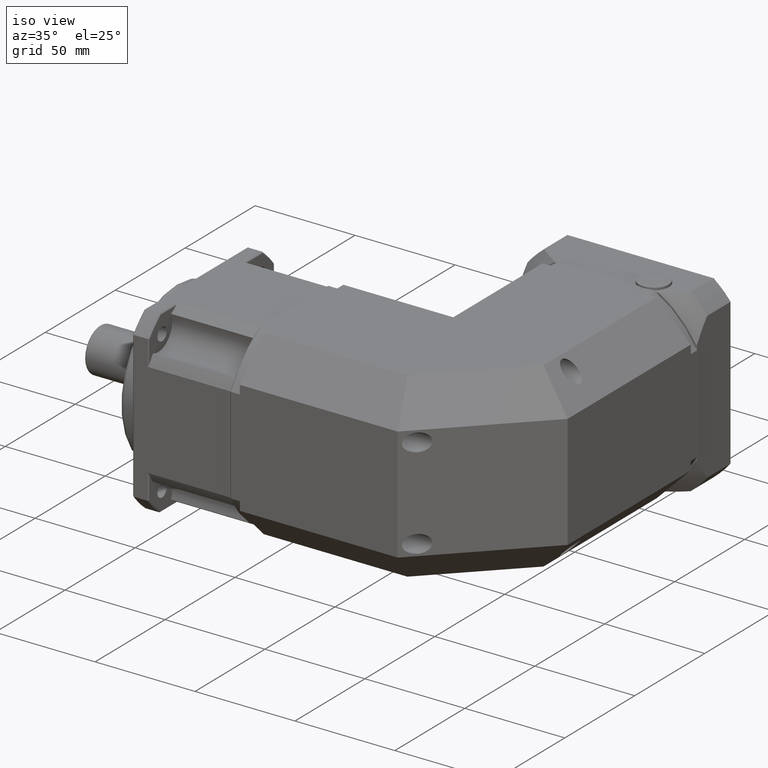
[diagram: clean part render]
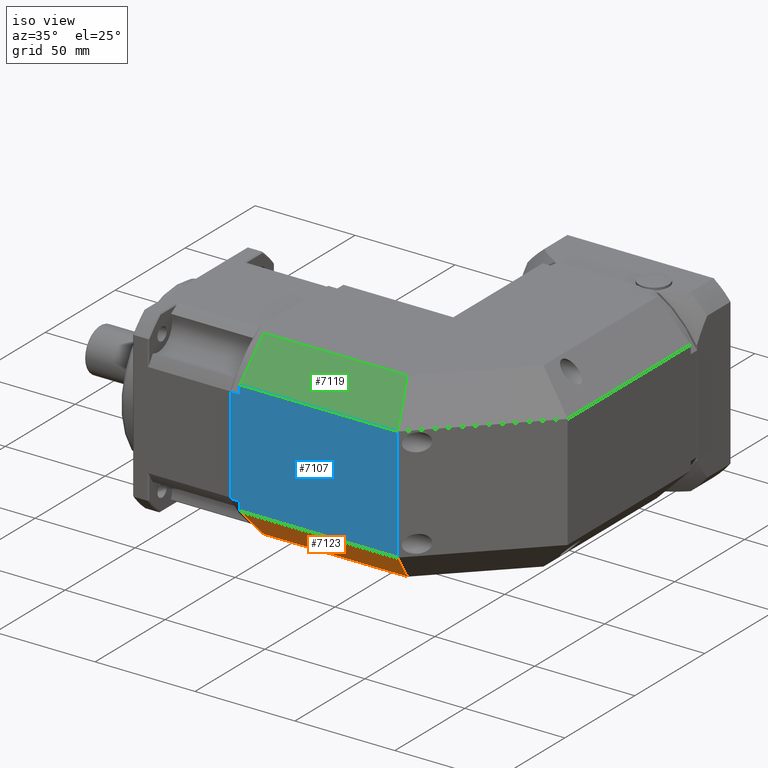
[diagram: same view with three faces highlighted in distinct colors, each labeled with its STEP entity id]
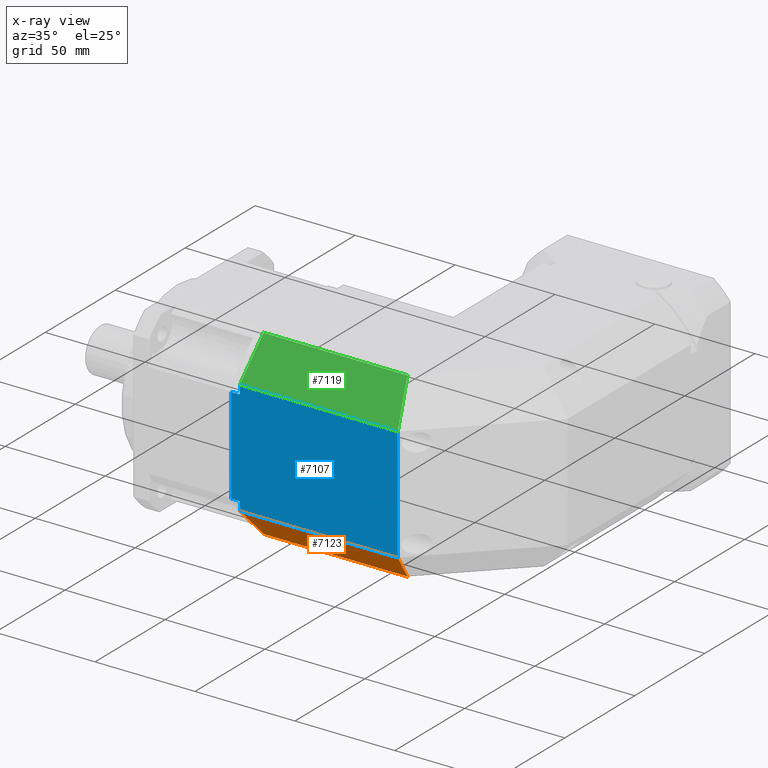
[diagram: x-ray of the same camera — body ghosted, the three highlighted faces saturated]
A machine part, iso view with three faces highlighted in distinct colors.
The next image is the same camera in x-ray (body ghosted, the three faces saturated) — at least one of them is partly hidden behind the body in this view.
Their STEP definitions:

[orange] entity #7123 — the highlighted planar face has unit normal (-0, -0.7071, -0.7071).
#350=LINE('',#11752,#733);
#386=LINE('',#11851,#769);
#388=LINE('',#11855,#771);
#389=LINE('',#11856,#772);
#733=VECTOR('',#9323,79.);
#769=VECTOR('',#9415,24.0416305603426);
#771=VECTOR('',#9419,71.9583694396574);
#772=VECTOR('',#9420,25.0516378895343);
#1651=FACE_OUTER_BOUND('',#2242,.T.);
#2242=EDGE_LOOP('',(#5420,#5421,#5422,#5423));
#3247=VERTEX_POINT('',#11749);
#3248=VERTEX_POINT('',#11751);
#3283=VERTEX_POINT('',#11850);
#3284=VERTEX_POINT('',#11854);
#4017=EDGE_CURVE('',#3248,#3247,#350,.T.);
#4066=EDGE_CURVE('',#3247,#3283,#386,.T.);
#4068=EDGE_CURVE('',#3283,#3284,#388,.T.);
#4069=EDGE_CURVE('',#3248,#3284,#389,.T.);
#5420=ORIENTED_EDGE('',*,*,#4017,.T.);
#5421=ORIENTED_EDGE('',*,*,#4066,.T.);
#5422=ORIENTED_EDGE('',*,*,#4068,.T.);
#5423=ORIENTED_EDGE('',*,*,#4069,.F.);
#6396=PLANE('',#7862);
#7123=ADVANCED_FACE('',(#1651),#6396,.T.);
#7862=AXIS2_PLACEMENT_3D('',#11853,#9417,#9418);
#9323=DIRECTION('',(-1.,1.33448673800559E-15,5.78496549379608E-15));
#9415=DIRECTION('',(-3.14696370774612E-15,0.707106781186548,-0.707106781186547));
#9417=DIRECTION('center_axis',(-5.03421295144066E-15,-0.707106781186547,
-0.707106781186548));
#9418=DIRECTION('ref_axis',(1.,-1.4210854715202E-15,-5.6843418860808E-15));
#9419=DIRECTION('',(1.,-1.33448673800559E-15,-5.78496549379608E-15));
#9420=DIRECTION('',(-0.281084637714822,0.678598344545848,-0.678598344545845));
#11749=CARTESIAN_POINT('',(-8.92450103917594,66.1914711004038,-24.9938984203011));
#11751=CARTESIAN_POINT('',(70.0754989608241,66.1914711004037,-24.9938984203016));
#11752=CARTESIAN_POINT('',(-13.9245010391759,66.1914711004039,-24.9938984203011));
#11850=CARTESIAN_POINT('',(-8.92450103917602,83.1914711004038,-41.9938984203011));
#11851=CARTESIAN_POINT('',(-8.92450103917598,74.6914711004038,-33.4938984203011));
#11853=CARTESIAN_POINT('Origin',(-13.924501039176,74.6914711004039,-33.4938984203011));
#11854=CARTESIAN_POINT('',(63.0338684004814,83.1914711004038,-41.9938984203015));
#11855=CARTESIAN_POINT('',(-13.924501039176,83.1914711004039,-41.9938984203011));
#11856=CARTESIAN_POINT('',(70.0754989608241,66.1914711004037,-24.9938984203016));

[blue] entity #7107 — the highlighted planar face has unit normal (-0, -1, -0).
#347=LINE('',#11746,#730);
#348=LINE('',#11748,#731);
#349=LINE('',#11750,#732);
#350=LINE('',#11752,#733);
#351=LINE('',#11754,#734);
#352=LINE('',#11756,#735);
#353=LINE('',#11758,#736);
#354=LINE('',#11759,#737);
#730=VECTOR('',#9320,48.2493523272593);
#731=VECTOR('',#9321,4.5);
#732=VECTOR('',#9322,4.37532383637033);
#733=VECTOR('',#9323,79.);
#734=VECTOR('',#9324,57.);
#735=VECTOR('',#9325,79.);
#736=VECTOR('',#9326,4.37532383637034);
#737=VECTOR('',#9327,4.5);
#1635=FACE_OUTER_BOUND('',#2223,.T.);
#2223=EDGE_LOOP('',(#5345,#5346,#5347,#5348,#5349,#5350,#5351,#5352));
#3244=VERTEX_POINT('',#11744);
#3245=VERTEX_POINT('',#11745);
#3246=VERTEX_POINT('',#11747);
#3247=VERTEX_POINT('',#11749);
#3248=VERTEX_POINT('',#11751);
#3249=VERTEX_POINT('',#11753);
#3250=VERTEX_POINT('',#11755);
#3251=VERTEX_POINT('',#11757);
#4014=EDGE_CURVE('',#3244,#3245,#347,.T.);
#4015=EDGE_CURVE('',#3244,#3246,#348,.T.);
#4016=EDGE_CURVE('',#3246,#3247,#349,.T.);
#4017=EDGE_CURVE('',#3248,#3247,#350,.T.);
#4018=EDGE_CURVE('',#3249,#3248,#351,.T.);
#4019=EDGE_CURVE('',#3250,#3249,#352,.T.);
#4020=EDGE_CURVE('',#3250,#3251,#353,.T.);
#4021=EDGE_CURVE('',#3251,#3245,#354,.T.);
#5345=ORIENTED_EDGE('',*,*,#4014,.F.);
#5346=ORIENTED_EDGE('',*,*,#4015,.T.);
#5347=ORIENTED_EDGE('',*,*,#4016,.T.);
#5348=ORIENTED_EDGE('',*,*,#4017,.F.);
#5349=ORIENTED_EDGE('',*,*,#4018,.F.);
#5350=ORIENTED_EDGE('',*,*,#4019,.F.);
#5351=ORIENTED_EDGE('',*,*,#4020,.T.);
#5352=ORIENTED_EDGE('',*,*,#4021,.T.);
#6384=PLANE('',#7833);
#7107=ADVANCED_FACE('',(#1635),#6384,.T.);
#7833=AXIS2_PLACEMENT_3D('',#11743,#9318,#9319);
#9318=DIRECTION('center_axis',(-1.33448673800559E-15,-1.,-3.28033123272452E-16));
#9319=DIRECTION('ref_axis',(-5.86197757002083E-15,0.,-1.));
#9320=DIRECTION('',(5.78496549379608E-15,-3.2803312327246E-16,1.));
#9321=DIRECTION('',(1.,-1.33448673800559E-15,-5.78496549379608E-15));
#9322=DIRECTION('',(-5.78496549379608E-15,3.2803312327246E-16,-1.));
#9323=DIRECTION('',(-1.,1.33448673800559E-15,5.78496549379608E-15));
#9324=DIRECTION('',(-5.78496549379608E-15,3.2803312327246E-16,-1.));
#9325=DIRECTION('',(1.,-1.33448673800559E-15,-5.78496549379608E-15));
#9326=DIRECTION('',(-5.78496549379608E-15,3.2803312327246E-16,-1.));
#9327=DIRECTION('',(-1.,1.33448673800559E-15,5.78496549379608E-15));
#11743=CARTESIAN_POINT('Origin',(-13.9245010391755,66.1914711004038,49.0061015796989));
#11744=CARTESIAN_POINT('',(-13.4245010391759,66.1914711004039,-20.6185745839307));
#11745=CARTESIAN_POINT('',(-13.4245010391756,66.1914711004038,27.6307777433286));
#11746=CARTESIAN_POINT('',(-13.4245010391756,66.1914711004038,26.2561015796989));
#11747=CARTESIAN_POINT('',(-8.92450103917592,66.1914711004038,-20.6185745839308));
#11748=CARTESIAN_POINT('',(-13.9245010391759,66.1914711004039,-20.6185745839307));
#11749=CARTESIAN_POINT('',(-8.92450103917594,66.1914711004038,-24.9938984203011));
#11750=CARTESIAN_POINT('',(-8.92450103917565,66.1914711004038,26.2561015796989));
#11751=CARTESIAN_POINT('',(70.0754989608241,66.1914711004037,-24.9938984203016));
#11752=CARTESIAN_POINT('',(-13.9245010391759,66.1914711004039,-24.9938984203011));
#11753=CARTESIAN_POINT('',(70.0754989608244,66.1914711004037,32.0061015796984));
#11754=CARTESIAN_POINT('',(70.0754989608244,66.1914711004037,26.2561015796984));
#11755=CARTESIAN_POINT('',(-8.92450103917561,66.1914711004038,32.0061015796989));
#11756=CARTESIAN_POINT('',(-13.9245010391756,66.1914711004038,32.0061015796989));
#11757=CARTESIAN_POINT('',(-8.92450103917564,66.1914711004038,27.6307777433285));
#11758=CARTESIAN_POINT('',(-8.92450103917565,66.1914711004038,26.2561015796989));
#11759=CARTESIAN_POINT('',(-13.9245010391756,66.1914711004038,27.6307777433286));

[green] entity #7119 — the highlighted planar face has unit normal (0, -0.7071, 0.7071).
#352=LINE('',#11756,#735);
#355=LINE('',#11762,#738);
#381=LINE('',#11839,#764);
#382=LINE('',#11840,#765);
#735=VECTOR('',#9325,79.);
#738=VECTOR('',#9330,24.0416305603426);
#764=VECTOR('',#9402,71.9583694396574);
#765=VECTOR('',#9403,25.0516378895343);
#1647=FACE_OUTER_BOUND('',#2237,.T.);
#2237=EDGE_LOOP('',(#5403,#5404,#5405,#5406));
#3249=VERTEX_POINT('',#11753);
#3250=VERTEX_POINT('',#11755);
#3252=VERTEX_POINT('',#11761);
#3280=VERTEX_POINT('',#11838);
#4019=EDGE_CURVE('',#3250,#3249,#352,.T.);
#4022=EDGE_CURVE('',#3252,#3250,#355,.T.);
#4060=EDGE_CURVE('',#3280,#3252,#381,.T.);
#4061=EDGE_CURVE('',#3280,#3249,#382,.T.);
#5403=ORIENTED_EDGE('',*,*,#4060,.T.);
#5404=ORIENTED_EDGE('',*,*,#4022,.T.);
#5405=ORIENTED_EDGE('',*,*,#4019,.T.);
#5406=ORIENTED_EDGE('',*,*,#4061,.F.);
#6392=PLANE('',#7857);
#7119=ADVANCED_FACE('',(#1647),#6392,.T.);
#7857=AXIS2_PLACEMENT_3D('',#11837,#9400,#9401);
#9325=DIRECTION('',(1.,-1.33448673800559E-15,-5.78496549379608E-15));
#9330=DIRECTION('',(-5.03421295144066E-15,-0.707106781186547,-0.707106781186548));
#9400=DIRECTION('center_axis',(3.14696370774612E-15,-0.707106781186548,
0.707106781186547));
#9401=DIRECTION('ref_axis',(-1.,1.4210854715202E-15,5.6843418860808E-15));
#9402=DIRECTION('',(-1.,1.33448673800559E-15,5.78496549379608E-15));
#9403=DIRECTION('',(0.281084637714815,-0.678598344545847,-0.678598344545849));
#11753=CARTESIAN_POINT('',(70.0754989608244,66.1914711004037,32.0061015796984));
#11755=CARTESIAN_POINT('',(-8.92450103917561,66.1914711004038,32.0061015796989));
#11756=CARTESIAN_POINT('',(-13.9245010391756,66.1914711004038,32.0061015796989));
#11761=CARTESIAN_POINT('',(-8.92450103917549,83.1914711004038,49.0061015796989));
#11762=CARTESIAN_POINT('',(-8.92450103917555,74.6914711004038,40.5061015796989));
#11837=CARTESIAN_POINT('Origin',(-13.9245010391756,74.6914711004038,40.5061015796989));
#11838=CARTESIAN_POINT('',(63.0338684004819,83.1914711004037,49.0061015796985));
#11839=CARTESIAN_POINT('',(-13.9245010391755,83.1914711004038,49.0061015796989));
#11840=CARTESIAN_POINT('',(63.0338684004819,83.1914711004037,49.0061015796985));